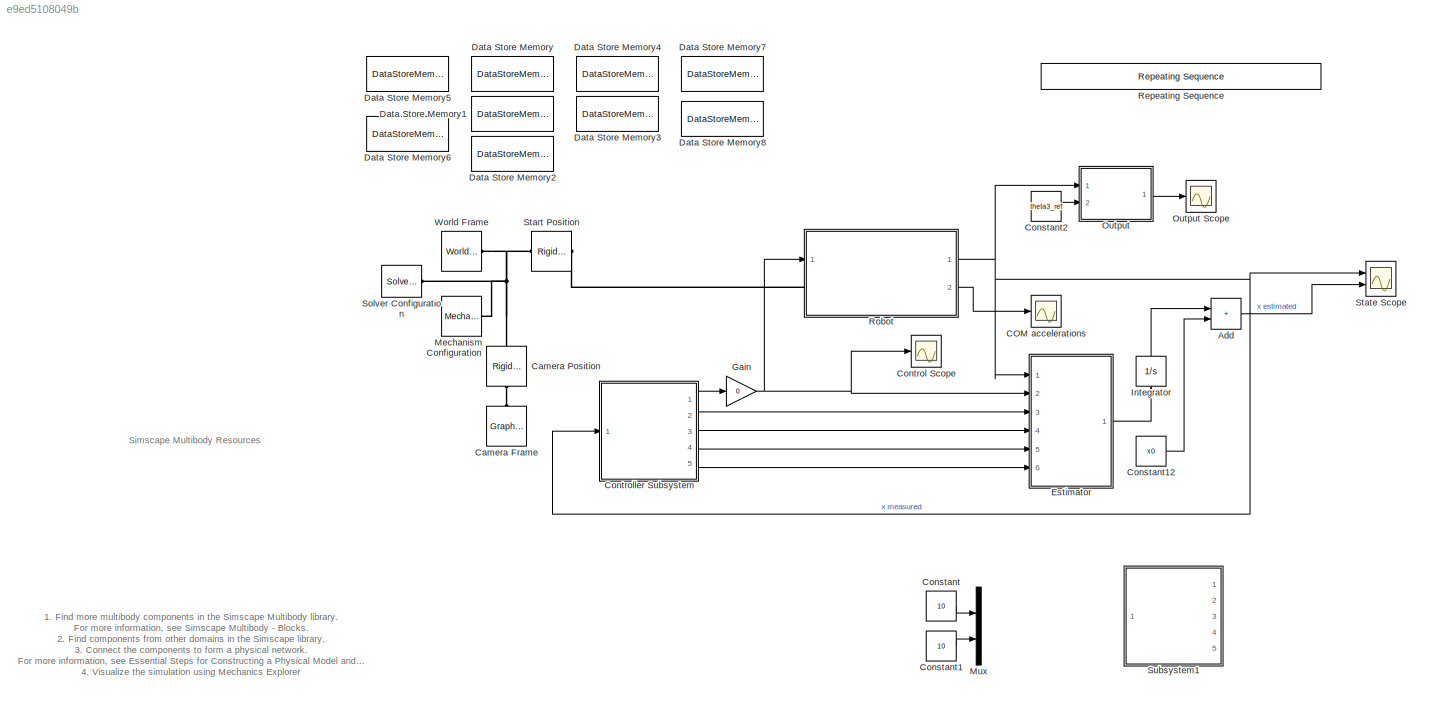
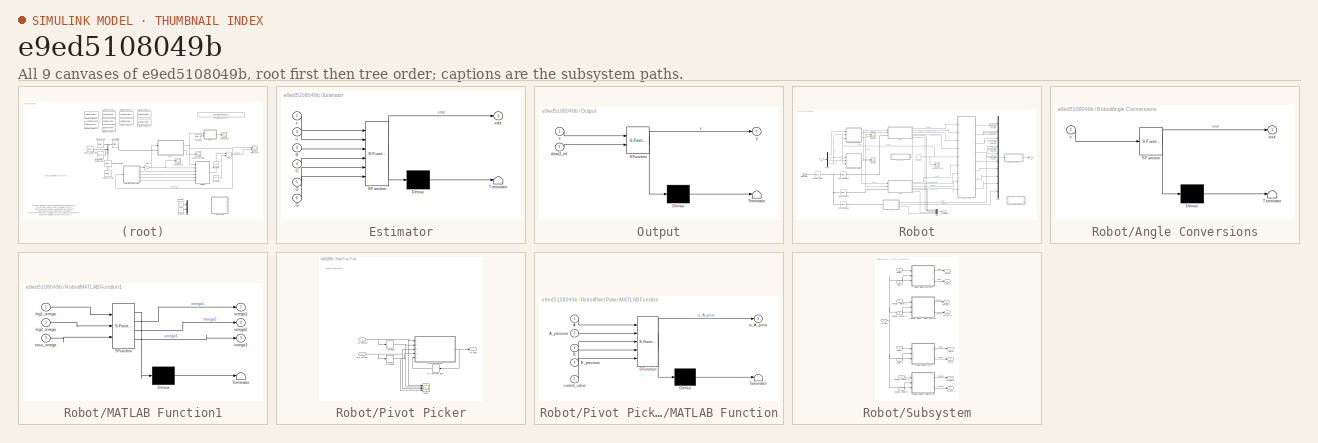
[diagram: thumbnail index - all 9 canvases of the model, root first then tree order]
MODEL slx_e9ed5108049b
KIND model
CONFIG AbsTol = auto
CONFIG EnableMultiTasking = on
CONFIG FixedStep = auto
CONFIG MaxStep = auto
CONFIG MinStep = auto
CONFIG RelTol = 1e-3
CONFIG SampleTimeConstraint = Unconstrained
CONFIG SolverName = ode23t
CONFIG StartTime = 0.0
CONFIG StopTime = 2
BLOCK [Sum] Add
  IconShape = rectangular
  Ports = [2, 1]
BLOCK [Scope] COM accelerations
  Floating = off
  NumInputPorts = 1
  Ports = [1]
  ScopeSpecificationString = Simulink.scopes.TimeScopeBlockCfg('CurrentConfiguration', extmgr.ConfigurationSet(extmgr.Configuration('Core','General UI',true),extmgr.Configuration('Core','Source UI',true),extmgr.Configuration('Sources','WiredSimulink',true,'DataLoggingVariableName','ScopeData3'),extmgr.Configuration('Visuals','Time Domain',true,'SerializedDisplays',{struct('MinYLimReal','-8574.83327','MaxYLimReal','77175.6204'...<+1649ch>
BLOCK [Reference] Camera Frame  REF=sm_lib/Body Elements/Graphic
  NameLocation = left
  Ports = [0, 0, 0, 0, 0, 0, 1]
  SourceBlock = sm_lib/Body Elements/Graphic
  SourceProductBaseCode = MS
  SourceType = Graphic
BLOCK [Reference] Camera Position  REF=sm_lib/Frames and
Transforms/Rigid
Transform
  NameLocation = left
  Ports = [0, 0, 0, 0, 0, 1, 1]
  SourceBlock = sm_lib/Frames and\nTransforms/Rigid\nTransform
  SourceProductBaseCode = MS
  SourceType = Rigid\nTransform
BLOCK [Constant] Constant
  Commented = on
  Value = 10
BLOCK [Constant] Constant1
  Commented = on
  Value = 10
BLOCK [Constant] Constant12
  Value = x0
BLOCK [Constant] Constant2
  Value = theta3_ref
BLOCK [Scope] Control Scope
  Floating = off
  NumInputPorts = 1
  Ports = [1]
  ScopeSpecificationString = Simulink.scopes.TimeScopeBlockCfg('CurrentConfiguration', extmgr.ConfigurationSet(extmgr.Configuration('Core','General UI',true),extmgr.Configuration('Core','Source UI',true),extmgr.Configuration('Sources','WiredSimulink',true,'DataLoggingVariableName','ScopeData5'),extmgr.Configuration('Visuals','Time Domain',true,'SerializedDisplays',{struct('MinYLimReal','-25.69355','MaxYLimReal','15.47306','YL...<+1630ch>
BLOCK [SubSystem] Controller Subsystem
  Ports = [1, 5]
  ReferencedSubsystem = Controller
  RequestExecContextInheritance = off
BLOCK [DataStoreMemory] Data Store Memory
  DataStoreName = torso_mass_sig
  Dimensions = 1
  InitialValue = torso_mass
  OutDataTypeStr = double
  ReadBeforeWriteMsg = warning
  ShowAdditionalParam = off
  SignalType = real
  WriteAfterReadMsg = warning
  WriteAfterWriteMsg = warning
BLOCK [DataStoreMemory] Data Store Memory1
  DataStoreName = leg_mass_sig
  Dimensions = 1
  InitialValue = leg_mass
  OutDataTypeStr = double
  ReadBeforeWriteMsg = warning
  ShowAdditionalParam = off
  SignalType = real
  WriteAfterReadMsg = warning
  WriteAfterWriteMsg = warning
BLOCK [DataStoreMemory] Data Store Memory2
  DataStoreName = hip_mass_sig
  Dimensions = 1
  InitialValue = hip_mass
  OutDataTypeStr = double
  ReadBeforeWriteMsg = warning
  ShowAdditionalParam = off
  SignalType = real
  WriteAfterReadMsg = warning
  WriteAfterWriteMsg = warning
BLOCK [DataStoreMemory] Data Store Memory3
  DataStoreName = leg_length_sig
  Dimensions = 1
  InitialValue = leg_length
  OutDataTypeStr = double
  ReadBeforeWriteMsg = warning
  ShowAdditionalParam = off
  SignalType = real
  WriteAfterReadMsg = warning
  WriteAfterWriteMsg = warning
BLOCK [DataStoreMemory] Data Store Memory4
  DataStoreName = torso_length_sig
  Dimensions = 1
  InitialValue = torso_length
  OutDataTypeStr = double
  ReadBeforeWriteMsg = warning
  ShowAdditionalParam = off
  SignalType = real
  WriteAfterReadMsg = warning
  WriteAfterWriteMsg = warning
BLOCK [DataStoreMemory] Data Store Memory5
  DataStoreName = g_sig
  Dimensions = 1
  InitialValue = g
  OutDataTypeStr = double
  ReadBeforeWriteMsg = warning
  ShowAdditionalParam = off
  SignalType = real
  WriteAfterReadMsg = warning
  WriteAfterWriteMsg = warning
BLOCK [DataStoreMemory] Data Store Memory6
  DataStoreName = B_sig
  InitialValue = B
  OutDataTypeStr = double
  ReadBeforeWriteMsg = warning
  ShowAdditionalParam = off
  SignalType = real
  WriteAfterReadMsg = warning
  WriteAfterWriteMsg = warning
BLOCK [DataStoreMemory] Data Store Memory7
  DataStoreName = alpha_sig
  Dimensions = 1
  InitialValue = alpha
  OutDataTypeStr = double
  ReadBeforeWriteMsg = warning
  ShowAdditionalParam = off
  SignalType = real
  WriteAfterReadMsg = warning
  WriteAfterWriteMsg = warning
BLOCK [DataStoreMemory] Data Store Memory8
  DataStoreName = theta3_ref_sig
  Dimensions = 1
  InitialValue = theta3_ref
  OutDataTypeStr = double
  ReadBeforeWriteMsg = warning
  ShowAdditionalParam = off
  SignalType = real
  WriteAfterReadMsg = warning
  WriteAfterWriteMsg = warning
BLOCK [SubSystem] Estimator
  ErrorFcn = Stateflow.Translate.translate
  PermitHierarchicalResolution = ExplicitOnly
  Ports = [6, 1]
  RequestExecContextInheritance = off
  SFBlockType = MATLAB Function
  TreatAsAtomicUnit = on
BLOCK [Demux] Estimator/ Demux 
  Outputs = 1
  Ports = [1, 1]
BLOCK [S-Function] Estimator/ SFunction 
  EnableBusSupport = on
  FunctionName = sf_sfun
  PortCounts = [6 2]
  Ports = [6, 2]
  SFcnIsStateOwnerBlock = off
  SFunctionDeploymentMode = off
  Tag = Stateflow S-Function 8
BLOCK [Terminator] Estimator/ Terminator 
BLOCK [Inport] Estimator/B
  Port = 3
BLOCK [Inport] Estimator/C
  Port = 4
BLOCK [Inport] Estimator/D
  Port = 5
BLOCK [Inport] Estimator/G
  Port = 6
BLOCK [Inport] Estimator/u
  Port = 2
BLOCK [Inport] Estimator/x
BLOCK [Outport] Estimator/xdot
BLOCK [Gain] Gain
  Gain = 0
BLOCK [Integrator] Integrator
  NameLocation = right
  Ports = [1, 1]
BLOCK [Reference] Mechanism Configuration  REF=sm_lib/Utilities/Mechanism
Configuration
  Ports = [0, 0, 0, 0, 0, 0, 1]
  SourceBlock = sm_lib/Utilities/Mechanism\nConfiguration
  SourceProductBaseCode = MS
  SourceType = Mechanism\nConfiguration
BLOCK [Mux] Mux
  Commented = on
  DisplayOption = bar
  Inputs = 2
  Ports = [2, 1]
BLOCK [SubSystem] Output
  ErrorFcn = Stateflow.Translate.translate
  PermitHierarchicalResolution = ExplicitOnly
  Ports = [2, 1]
  RequestExecContextInheritance = off
  SFBlockType = MATLAB Function
  TreatAsAtomicUnit = on
BLOCK [Scope] Output Scope
  Floating = off
  NumInputPorts = 1
  Ports = [1]
  ScopeSpecificationString = Simulink.scopes.TimeScopeBlockCfg('CurrentConfiguration', extmgr.ConfigurationSet(extmgr.Configuration('Core','General UI',true),extmgr.Configuration('Core','Source UI',true),extmgr.Configuration('Sources','WiredSimulink',true,'DataLoggingVariableName','ScopeData1'),extmgr.Configuration('Visuals','Time Domain',true,'SerializedDisplays',{struct('MinYLimReal','-2.44746','MaxYLimReal','5.40652','YLab...<+1587ch>
BLOCK [Demux] Output/ Demux 
  Outputs = 1
  Ports = [1, 1]
BLOCK [S-Function] Output/ SFunction 
  EnableBusSupport = on
  FunctionName = sf_sfun
  PortCounts = [2 2]
  Ports = [2, 2]
  SFcnIsStateOwnerBlock = off
  SFunctionDeploymentMode = off
  Tag = Stateflow S-Function 9
BLOCK [Terminator] Output/ Terminator 
BLOCK [Inport] Output/theta3_ref
  Port = 2
BLOCK [Inport] Output/x
BLOCK [Outport] Output/y
BLOCK [Reference] Repeating Sequence  REF=simulink/Sources/Repeating
Sequence
  Commented = on
  Ports = [0, 1]
  SourceBlock = simulink/Sources/Repeating\nSequence
  SourceProductBaseCode = SL
  SourceType = Repeating table
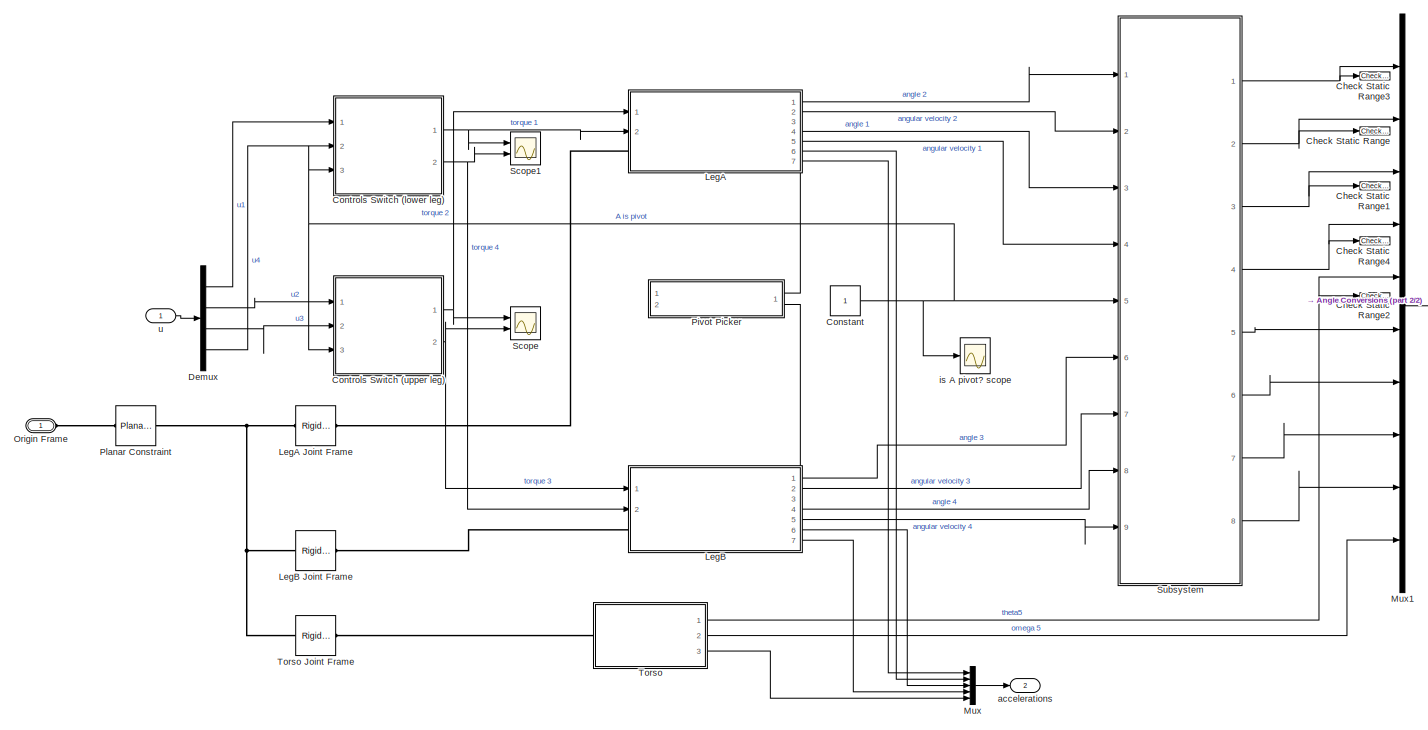
[diagram: Robot - part 1/2, most of the canvas]
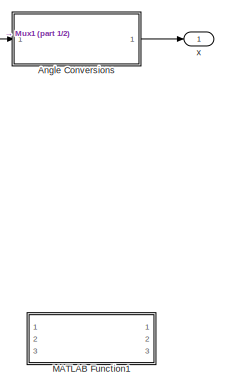
[diagram: Robot - part 2/2, middle right region]
BLOCK [SubSystem] Robot
  PortSchema = {"entries":[{"content":{"sides":[{"content":{"connectorIds":["LConn1","In1"]},"type":"ConnectorPlacement.EquallySpacedRectSide","uuid":"2f3210f0-abe8-4697-b3ad-d2ec49545383"},{"content":{"connectorIds":["Out1","Out2"],"side":"RIGHT"},"type":"ConnectorPlacement.EquallySpacedRectSide","uuid":"4399d13c-8cd1-4308-a65a-d503c0277a4d"},{"content":{"connectorIds":[],"side":"TOP"},"type":"ConnectorPlacemen...<+400ch>
  Ports = [1, 2, 0, 0, 0, 1]
  RequestExecContextInheritance = off
BLOCK [SubSystem] Robot/ Torso
  Ports = [0, 3, 0, 0, 0, 1]
  ReferencedSubsystem = Torso
  RequestExecContextInheritance = off
BLOCK [SubSystem] Robot/Angle Conversions
  ErrorFcn = Stateflow.Translate.translate
  PermitHierarchicalResolution = ExplicitOnly
  Ports = [1, 1]
  RequestExecContextInheritance = off
  SFBlockType = MATLAB Function
  TreatAsAtomicUnit = on
BLOCK [Demux] Robot/Angle Conversions/ Demux 
  Outputs = 1
  Ports = [1, 1]
BLOCK [S-Function] Robot/Angle Conversions/ SFunction 
  EnableBusSupport = on
  FunctionName = sf_sfun
  PortCounts = [1 2]
  Ports = [1, 2]
  SFcnIsStateOwnerBlock = off
  SFunctionDeploymentMode = off
  Tag = Stateflow S-Function 2
BLOCK [Terminator] Robot/Angle Conversions/ Terminator 
BLOCK [Inport] Robot/Angle Conversions/x
BLOCK [Outport] Robot/Angle Conversions/xout
BLOCK [Reference] Robot/Check Static Range  REF=simulink/Model
Verification/Check 
Static Range
  Description = -2*pi/3 < u < 2*pi/3
  Ports = [1]
  SourceBlock = simulink/Model\nVerification/Check \nStatic Range
  SourceProductBaseCode = SL
  SourceType = Checks_SRange
BLOCK [Reference] Robot/Check Static Range1  REF=simulink/Model
Verification/Check 
Static Range
  Description = -2*pi/3 < u < 2*pi/3
  Ports = [1]
  SourceBlock = simulink/Model\nVerification/Check \nStatic Range
  SourceProductBaseCode = SL
  SourceType = Checks_SRange
BLOCK [Reference] Robot/Check Static Range2  REF=simulink/Model
Verification/Check 
Static Range
  Description = -2*pi/3 < u < 2*pi/3
  Ports = [1]
  SourceBlock = simulink/Model\nVerification/Check \nStatic Range
  SourceProductBaseCode = SL
  SourceType = Checks_SRange
BLOCK [Reference] Robot/Check Static Range3  REF=simulink/Model
Verification/Check 
Static Range
  Description = -2*pi/3 < u < 2*pi/3
  Ports = [1]
  SourceBlock = simulink/Model\nVerification/Check \nStatic Range
  SourceProductBaseCode = SL
  SourceType = Checks_SRange
BLOCK [Reference] Robot/Check Static Range4  REF=simulink/Model
Verification/Check 
Static Range
  Description = -2*pi/3 < u < 2*pi/3
  Ports = [1]
  SourceBlock = simulink/Model\nVerification/Check \nStatic Range
  SourceProductBaseCode = SL
  SourceType = Checks_SRange
BLOCK [Constant] Robot/Constant
BLOCK [SubSystem] Robot/Controls Switch (lower leg)
  PortSchema = {"entries":[{"content":{"sides":[{"content":{"connectorIds":["In1","In3","In2"]},"type":"ConnectorPlacement.EquallySpacedRectSide","uuid":"7e33861c-5074-441d-b641-b4ece234d3e8"},{"content":{"connectorIds":["Out1","Out2"],"side":"RIGHT"},"type":"ConnectorPlacement.EquallySpacedRectSide","uuid":"609d8ac8-1838-48e6-9b6c-e0af73270124"},{"content":{"connectorIds":[],"side":"TOP"},"type":"ConnectorPlace...<+403ch>  <repeated x6 — deduplicated; at blocks: Controls Switch (lower leg), Controls Switch (upper leg), Angles Switch bottom, Angles Switch top, Angular Velocity Switch bottom, Angular Velocity Switch top>
  Ports = [3, 2]
  ReferencedSubsystem = SignalSwitch
  RequestExecContextInheritance = off
BLOCK [SubSystem] Robot/Controls Switch (upper leg)
  Ports = [3, 2]
  ReferencedSubsystem = SignalSwitch
  RequestExecContextInheritance = off
BLOCK [Demux] Robot/Demux
  Ports = [1, 4]
BLOCK [SubSystem] Robot/LegA
  PortSchema = {"entries":[{"content":{"sides":[{"content":{"connectorIds":["In1","In2","LConn1"]},"type":"ConnectorPlacement.EquallySpacedRectSide","uuid":"68930e0b-e4b0-4d49-946a-e41a255806cc"},{"content":{"connectorIds":["Out1","Out2","Out4","Out5","Out6","Out7"],"side":"RIGHT"},"type":"ConnectorPlacement.EquallySpacedRectSide","uuid":"a3896fcd-ecd1-47b2-8226-2ddb0e6701dc"},{"content":{"connectorIds":[],"side...<+584ch>
  Ports = [2, 7, 0, 0, 0, 1]
  ReferencedSubsystem = Limb
  RequestExecContextInheritance = off
BLOCK [Reference] Robot/LegA Joint Frame  REF=sm_lib/Frames and
Transforms/Rigid
Transform
  Ports = [0, 0, 0, 0, 0, 1, 1]
  SourceBlock = sm_lib/Frames and\nTransforms/Rigid\nTransform
  SourceProductBaseCode = MS
  SourceType = Rigid\nTransform
BLOCK [SubSystem] Robot/LegB
  PortSchema = {"entries":[{"content":{"sides":[{"content":{"connectorIds":["In1","In2","LConn1"]},"type":"ConnectorPlacement.EquallySpacedRectSide","uuid":"68930e0b-e4b0-4d49-946a-e41a255806cc"},{"content":{"connectorIds":["Out1","Out2","Out4","Out5","Out6","Out7"],"side":"RIGHT"},"type":"ConnectorPlacement.EquallySpacedRectSide","uuid":"a3896fcd-ecd1-47b2-8226-2ddb0e6701dc"},{"content":{"connectorIds":["Out3"]...<+440ch>
  Ports = [2, 7, 0, 0, 0, 1]
  ReferencedSubsystem = Limb
  RequestExecContextInheritance = off
BLOCK [Reference] Robot/LegB Joint Frame  REF=sm_lib/Frames and
Transforms/Rigid
Transform
  Ports = [0, 0, 0, 0, 0, 1, 1]
  SourceBlock = sm_lib/Frames and\nTransforms/Rigid\nTransform
  SourceProductBaseCode = MS
  SourceType = Rigid\nTransform
BLOCK [SubSystem] Robot/MATLAB Function1
  Commented = on
  ErrorFcn = Stateflow.Translate.translate
  PermitHierarchicalResolution = ExplicitOnly
  Ports = [3, 3]
  RequestExecContextInheritance = off
  SFBlockType = MATLAB Function
  TreatAsAtomicUnit = on
BLOCK [Demux] Robot/MATLAB Function1/ Demux 
  Outputs = 1
  Ports = [1, 1]
BLOCK [S-Function] Robot/MATLAB Function1/ SFunction 
  EnableBusSupport = on
  FunctionName = sf_sfun
  PortCounts = [3 4]
  Ports = [3, 4]
  SFcnIsStateOwnerBlock = off
  SFunctionDeploymentMode = off
  Tag = Stateflow S-Function 4
BLOCK [Terminator] Robot/MATLAB Function1/ Terminator 
BLOCK [Inport] Robot/MATLAB Function1/leg1_omega
BLOCK [Inport] Robot/MATLAB Function1/leg2_omega
  Port = 2
BLOCK [Outport] Robot/MATLAB Function1/omega1
BLOCK [Outport] Robot/MATLAB Function1/omega2
  Port = 2
BLOCK [Outport] Robot/MATLAB Function1/omega3
  Port = 3
BLOCK [Inport] Robot/MATLAB Function1/torso_omega
  Port = 3
BLOCK [Mux] Robot/Mux
  DisplayOption = bar
  Inputs = 5
  Ports = [5, 1]
BLOCK [Mux] Robot/Mux1
  DisplayOption = bar
  Inputs = 10
  Ports = [10, 1]
BLOCK [PMIOPort] Robot/Origin Frame
  Side = Left
BLOCK [SubSystem] Robot/Pivot Picker
  NameLocation = top
  PortSchema = {"entries":[{"content":{"sides":[{"content":{"connectorIds":[]},"type":"ConnectorPlacement.EquallySpacedRectSide","uuid":"be4fbf09-76ee-432b-8662-96fa6e1bc1d5"},{"content":{"connectorIds":["Out1"],"side":"RIGHT"},"type":"ConnectorPlacement.EquallySpacedRectSide","uuid":"596fe9f3-46af-4262-a320-141f0a882293"},{"content":{"connectorIds":["In1"],"side":"TOP"},"type":"ConnectorPlacement.EquallySpacedR...<+533ch>
  Ports = [2, 1]
  RequestExecContextInheritance = off
BLOCK [Inport] Robot/Pivot Picker/A is contact
BLOCK [Outport] Robot/Pivot Picker/A is pivot
  PortDimensions = 1
BLOCK [Memory] Robot/Pivot Picker/A previous
BLOCK [Inport] Robot/Pivot Picker/B is contact
  Port = 2
BLOCK [Memory] Robot/Pivot Picker/B previous
BLOCK [SubSystem] Robot/Pivot Picker/MATLAB Function
  ErrorFcn = Stateflow.Translate.translate
  PermitHierarchicalResolution = ExplicitOnly
  Ports = [5, 1]
  RequestExecContextInheritance = off
  SFBlockType = MATLAB Function
  TreatAsAtomicUnit = on
BLOCK [Demux] Robot/Pivot Picker/MATLAB Function/ Demux 
  Outputs = 1
  Ports = [1, 1]
BLOCK [S-Function] Robot/Pivot Picker/MATLAB Function/ SFunction 
  EnableBusSupport = on
  FunctionName = sf_sfun
  PortCounts = [5 2]
  Ports = [5, 2]
  SFcnIsStateOwnerBlock = off
  SFunctionDeploymentMode = off
  Tag = Stateflow S-Function 7
BLOCK [Terminator] Robot/Pivot Picker/MATLAB Function/ Terminator 
BLOCK [Inport] Robot/Pivot Picker/MATLAB Function/A
BLOCK [Inport] Robot/Pivot Picker/MATLAB Function/A_previous
  Port = 2
BLOCK [Inport] Robot/Pivot Picker/MATLAB Function/B
  Port = 3
BLOCK [Inport] Robot/Pivot Picker/MATLAB Function/B_previous
  Port = 4
BLOCK [Inport] Robot/Pivot Picker/MATLAB Function/current_value
  Port = 5
BLOCK [Outport] Robot/Pivot Picker/MATLAB Function/is_A_pivot
BLOCK [Scope] Robot/Pivot Picker/Scope
  Floating = off
  NumInputPorts = 4
  Ports = [4]
  ScopeSpecificationString = Simulink.scopes.TimeScopeBlockCfg('CurrentConfiguration', extmgr.ConfigurationSet(extmgr.Configuration('Core','General UI',true),extmgr.Configuration('Core','Source UI',true),extmgr.Configuration('Sources','WiredSimulink',true,'DataLoggingVariableName','ScopeData3'),extmgr.Configuration('Visuals','Time Domain',true,'SerializedDisplays',{struct('MinYLimReal','-0.125','MaxYLimReal','1.125','YLabelRe...<+1541ch>
BLOCK [Memory] Robot/Pivot Picker/is A current pivot
BLOCK [Reference] Robot/Planar Constraint  REF=sm_lib/Joints/Planar Joint
  Ports = [0, 0, 0, 0, 0, 1, 1]
  SourceBlock = sm_lib/Joints/Planar Joint
  SourceProductBaseCode = MS
  SourceType = Planar Joint
BLOCK [Scope] Robot/Scope
  Floating = off
  NumInputPorts = 2
  Ports = [2]
  ScopeSpecificationString = Simulink.scopes.TimeScopeBlockCfg('CurrentConfiguration', extmgr.ConfigurationSet(extmgr.Configuration('Core','General UI',true),extmgr.Configuration('Core','Source UI',true),extmgr.Configuration('Sources','WiredSimulink',true,'DataLoggingVariableName','ScopeData4'),extmgr.Configuration('Visuals','Time Domain',true,'SerializedDisplays',{struct('MinYLimReal','-1.00000','MaxYLimReal','1.00000','YLab...<+1386ch>
BLOCK [Scope] Robot/Scope1
  Floating = off
  NumInputPorts = 2
  Ports = [2]
  ScopeSpecificationString = Simulink.scopes.TimeScopeBlockCfg('CurrentConfiguration', extmgr.ConfigurationSet(extmgr.Configuration('Core','General UI',true),extmgr.Configuration('Core','Source UI',true),extmgr.Configuration('Sources','WiredSimulink',true,'DataLoggingVariableName','ScopeData3'),extmgr.Configuration('Visuals','Time Domain',true,'SerializedDisplays',{struct('MinYLimReal','-1.00000','MaxYLimReal','1.00000','YLab...<+1386ch>
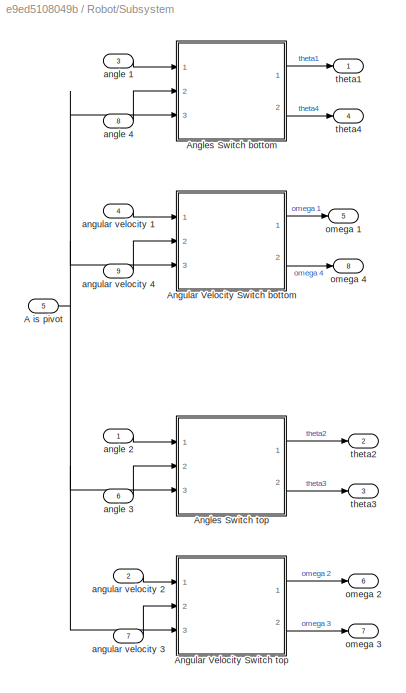
BLOCK [SubSystem] Robot/Subsystem
  Ports = [9, 8]
  RequestExecContextInheritance = off
BLOCK [Inport] Robot/Subsystem/A is pivot
  Port = 5
BLOCK [SubSystem] Robot/Subsystem/Angles Switch bottom
  Ports = [3, 2]
  ReferencedSubsystem = SignalSwitch
  RequestExecContextInheritance = off
BLOCK [SubSystem] Robot/Subsystem/Angles Switch top
  Ports = [3, 2]
  ReferencedSubsystem = SignalSwitch
  RequestExecContextInheritance = off
BLOCK [SubSystem] Robot/Subsystem/Angular Velocity Switch bottom
  Ports = [3, 2]
  ReferencedSubsystem = SignalSwitch
  RequestExecContextInheritance = off
BLOCK [SubSystem] Robot/Subsystem/Angular Velocity Switch top
  Ports = [3, 2]
  ReferencedSubsystem = SignalSwitch
  RequestExecContextInheritance = off
BLOCK [Inport] Robot/Subsystem/angle 1
  Port = 3
BLOCK [Inport] Robot/Subsystem/angle 2
BLOCK [Inport] Robot/Subsystem/angle 3
  Port = 6
BLOCK [Inport] Robot/Subsystem/angle 4
  Port = 8
BLOCK [Inport] Robot/Subsystem/angular velocity 1
  Port = 4
BLOCK [Inport] Robot/Subsystem/angular velocity 2
  Port = 2
BLOCK [Inport] Robot/Subsystem/angular velocity 3
  Port = 7
BLOCK [Inport] Robot/Subsystem/angular velocity 4
  Port = 9
BLOCK [Outport] Robot/Subsystem/omega 1
  Port = 5
BLOCK [Outport] Robot/Subsystem/omega 2
  Port = 6
BLOCK [Outport] Robot/Subsystem/omega 3
  Port = 7
BLOCK [Outport] Robot/Subsystem/omega 4
  Port = 8
BLOCK [Outport] Robot/Subsystem/theta1
BLOCK [Outport] Robot/Subsystem/theta2
  Port = 2
BLOCK [Outport] Robot/Subsystem/theta3
  Port = 3
BLOCK [Outport] Robot/Subsystem/theta4
  Port = 4
BLOCK [Reference] Robot/Torso Joint Frame  REF=sm_lib/Frames and
Transforms/Rigid
Transform
  Ports = [0, 0, 0, 0, 0, 1, 1]
  SourceBlock = sm_lib/Frames and\nTransforms/Rigid\nTransform
  SourceProductBaseCode = MS
  SourceType = Rigid\nTransform
BLOCK [Outport] Robot/accelerations
  Port = 2
  PortDimensions = 5
BLOCK [Scope] Robot/is A pivot? scope
  Floating = off
  NumInputPorts = 1
  Ports = [1]
  ScopeSpecificationString = Simulink.scopes.TimeScopeBlockCfg('CurrentConfiguration', extmgr.ConfigurationSet(extmgr.Configuration('Core','General UI',true),extmgr.Configuration('Core','Source UI',true),extmgr.Configuration('Sources','WiredSimulink',true,'DataLoggingVariableName','ScopeData2'),extmgr.Configuration('Visuals','Time Domain',true,'SerializedDisplays',{struct('MinYLimReal','0.9','MaxYLimReal','1.1','YLabelReal','...<+1461ch>
BLOCK [Inport] Robot/u
  PortDimensions = 4
BLOCK [Outport] Robot/x
  PortDimensions = 10
BLOCK [Reference] Solver Configuration  REF=nesl_utility/Solver
Configuration
  Ports = [0, 0, 0, 0, 0, 0, 1]
  SourceBlock = nesl_utility/Solver\nConfiguration
  SourceProductBaseCode = SS
  SourceType = Solver\nConfiguration
BLOCK [Reference] Start Position  REF=sm_lib/Frames and
Transforms/Rigid
Transform
  Ports = [0, 0, 0, 0, 0, 1, 1]
  SourceBlock = sm_lib/Frames and\nTransforms/Rigid\nTransform
  SourceProductBaseCode = MS
  SourceType = Rigid\nTransform
BLOCK [Scope] State Scope
  Floating = off
  NumInputPorts = 2
  Ports = [2]
  ScopeSpecificationString = Simulink.scopes.TimeScopeBlockCfg('CurrentConfiguration', extmgr.ConfigurationSet(extmgr.Configuration('Core','General UI',true),extmgr.Configuration('Core','Source UI',true),extmgr.Configuration('Sources','WiredSimulink',true,'DataLoggingVariableName','ScopeData1'),extmgr.Configuration('Visuals','Time Domain',true,'SerializedDisplays',{struct('MinYLimReal','-51.86479','MaxYLimReal','92.31968','YL...<+2244ch>
BLOCK [SubSystem] Subsystem1
  Commented = on
  Ports = [1, 5]
  ReferencedSubsystem = Controller
  RequestExecContextInheritance = off
BLOCK [Reference] World Frame  REF=sm_lib/Frames and
Transforms/World Frame
  Ports = [0, 0, 0, 0, 0, 0, 1]
  SourceBlock = sm_lib/Frames and\nTransforms/World Frame
  SourceProductBaseCode = MS
  SourceType = World Frame
ANNOTATION (root): 1. Find more multibody components in the Simscape Multibody library . For more information, see Simscape Multibody - Blocks . 2. Find components from other domains in the Simscape library . 3. Connect the components to form a physical network. For more information, see Essential Steps for Constructing a Physical Model and Creating a Multibody Model . 4. Visualize the simulation using Mechanics Exp...<+52ch>
ANNOTATION (root): Simscape Multibody Resources
ANNOTATION Robot/Pivot Picker: Variant Subsystem
LINE Add:1 -> State Scope:2
LINE Constant12:1 -> Add:2
LINE Constant1:1 -> Mux:2
LINE Constant2:1 -> Output:2
LINE Constant:1 -> Mux:1
LINE Controller Subsystem:1 -> Gain:1
LINE Controller Subsystem:2 -> Estimator:3
LINE Controller Subsystem:3 -> Estimator:4
LINE Controller Subsystem:4 -> Estimator:5
LINE Controller Subsystem:5 -> Estimator:6
LINE Estimator:1 -> Integrator:1
NET Gain:1 -> Control Scope:1, Estimator:2, Robot:1
LINE Integrator:1 -> Add:1
LINE Output:1 -> Output Scope:1
NET Robot/ Torso:1 -> Robot/Check Static Range2:1, Robot/Mux1:5
LINE Robot/ Torso:2 -> Robot/Mux1:10
LINE Robot/ Torso:3 -> Robot/Mux:5
LINE Robot/Angle Conversions:1 -> Robot/x:1
NET Robot/Constant:1 -> Robot/Controls Switch (lower leg):3, Robot/Controls Switch (upper leg):3, Robot/Subsystem:5, Robot/is A pivot? scope:1
NET Robot/Controls Switch (lower leg):1 -> Robot/LegA:2, Robot/Scope1:1
NET Robot/Controls Switch (lower leg):2 -> Robot/LegB:2, Robot/Scope1:2
NET Robot/Controls Switch (upper leg):1 -> Robot/LegA:1, Robot/Scope:1
NET Robot/Controls Switch (upper leg):2 -> Robot/LegB:1, Robot/Scope:2
LINE Robot/Demux:1 -> Robot/Controls Switch (lower leg):1
LINE Robot/Demux:2 -> Robot/Controls Switch (upper leg):1
LINE Robot/Demux:3 -> Robot/Controls Switch (upper leg):2
LINE Robot/Demux:4 -> Robot/Controls Switch (lower leg):2
LINE Robot/LegA:1 -> Robot/Subsystem:1
LINE Robot/LegA:2 -> Robot/Subsystem:2
LINE Robot/LegA:3 -> Robot/Pivot Picker:1
LINE Robot/LegA:4 -> Robot/Subsystem:3
LINE Robot/LegA:5 -> Robot/Subsystem:4
LINE Robot/LegA:6 -> Robot/Mux:2
LINE Robot/LegA:7 -> Robot/Mux:1
LINE Robot/LegB:1 -> Robot/Subsystem:6
LINE Robot/LegB:2 -> Robot/Subsystem:7
LINE Robot/LegB:3 -> Robot/Pivot Picker:2
LINE Robot/LegB:4 -> Robot/Subsystem:8
LINE Robot/LegB:5 -> Robot/Subsystem:9
LINE Robot/LegB:6 -> Robot/Mux:3
LINE Robot/LegB:7 -> Robot/Mux:4
LINE Robot/Mux1:1 -> Robot/Angle Conversions:1
LINE Robot/Mux:1 -> Robot/accelerations:1
NET Robot/Pivot Picker/A is contact:1 -> Robot/Pivot Picker/A previous:1, Robot/Pivot Picker/MATLAB Function:1, Robot/Pivot Picker/Scope:1
NET Robot/Pivot Picker/A previous:1 -> Robot/Pivot Picker/MATLAB Function:2, Robot/Pivot Picker/Scope:2
NET Robot/Pivot Picker/B is contact:1 -> Robot/Pivot Picker/B previous:1, Robot/Pivot Picker/MATLAB Function:3, Robot/Pivot Picker/Scope:3
NET Robot/Pivot Picker/B previous:1 -> Robot/Pivot Picker/MATLAB Function:4, Robot/Pivot Picker/Scope:4
NET Robot/Pivot Picker/MATLAB Function:1 -> Robot/Pivot Picker/A is pivot:1, Robot/Pivot Picker/is A current pivot:1
LINE Robot/Pivot Picker/is A current pivot:1 -> Robot/Pivot Picker/MATLAB Function:5
NET Robot/Subsystem/A is pivot:1 -> Robot/Subsystem/Angles Switch bottom:3, Robot/Subsystem/Angles Switch top:3, Robot/Subsystem/Angular Velocity Switch bottom:3, Robot/Subsystem/Angular Velocity Switch top:3
LINE Robot/Subsystem/Angles Switch bottom:1 -> Robot/Subsystem/theta1:1
LINE Robot/Subsystem/Angles Switch bottom:2 -> Robot/Subsystem/theta4:1
LINE Robot/Subsystem/Angles Switch top:1 -> Robot/Subsystem/theta2:1
LINE Robot/Subsystem/Angles Switch top:2 -> Robot/Subsystem/theta3:1
LINE Robot/Subsystem/Angular Velocity Switch bottom:1 -> Robot/Subsystem/omega 1:1
LINE Robot/Subsystem/Angular Velocity Switch bottom:2 -> Robot/Subsystem/omega 4:1
LINE Robot/Subsystem/Angular Velocity Switch top:1 -> Robot/Subsystem/omega 2:1
LINE Robot/Subsystem/Angular Velocity Switch top:2 -> Robot/Subsystem/omega 3:1
LINE Robot/Subsystem/angle 1:1 -> Robot/Subsystem/Angles Switch bottom:1
LINE Robot/Subsystem/angle 2:1 -> Robot/Subsystem/Angles Switch top:1
LINE Robot/Subsystem/angle 3:1 -> Robot/Subsystem/Angles Switch top:2
LINE Robot/Subsystem/angle 4:1 -> Robot/Subsystem/Angles Switch bottom:2
LINE Robot/Subsystem/angular velocity 1:1 -> Robot/Subsystem/Angular Velocity Switch bottom:1
LINE Robot/Subsystem/angular velocity 2:1 -> Robot/Subsystem/Angular Velocity Switch top:1
LINE Robot/Subsystem/angular velocity 3:1 -> Robot/Subsystem/Angular Velocity Switch top:2
LINE Robot/Subsystem/angular velocity 4:1 -> Robot/Subsystem/Angular Velocity Switch bottom:2
NET Robot/Subsystem:1 -> Robot/Check Static Range3:1, Robot/Mux1:1
NET Robot/Subsystem:2 -> Robot/Check Static Range:1, Robot/Mux1:2
NET Robot/Subsystem:3 -> Robot/Check Static Range1:1, Robot/Mux1:3
NET Robot/Subsystem:4 -> Robot/Check Static Range4:1, Robot/Mux1:4
LINE Robot/Subsystem:5 -> Robot/Mux1:6
LINE Robot/Subsystem:6 -> Robot/Mux1:7
LINE Robot/Subsystem:7 -> Robot/Mux1:8
LINE Robot/Subsystem:8 -> Robot/Mux1:9
LINE Robot/u:1 -> Robot/Demux:1
NET Robot:1 -> Controller Subsystem:1, Estimator:1, Output:1, State Scope:1
LINE Robot:2 -> COM accelerations:1
PLINE Camera Frame:RConn1 -- Camera Position:RConn1
PNET net1: Camera Position:LConn1 -- Mechanism Configuration:RConn1 -- Solver Configuration:RConn1 -- Start Position:LConn1 -- World Frame:RConn1
PLINE Robot/ Torso:LConn1 -- Robot/Torso Joint Frame:RConn1
PNET net2: Robot/LegA Joint Frame:LConn1 -- Robot/LegB Joint Frame:LConn1 -- Robot/Planar Constraint:RConn1 -- Robot/Torso Joint Frame:LConn1
PLINE Robot/LegA Joint Frame:RConn1 -- Robot/LegA:LConn1
PLINE Robot/LegB Joint Frame:RConn1 -- Robot/LegB:LConn1
PLINE Robot/Origin Frame:RConn1 -- Robot/Planar Constraint:LConn1
PLINE Robot:LConn1 -- Start Position:RConn1
note: NET lines group one-source signal fan-out (src -> all destinations, sorted); 1:1 wires keep LINE; PNET lines group multi-terminal physical nets as a canonical sorted terminal list (undirected conserving connections); 2-terminal nets keep the pairwise PLINE form
CHART Robot/Angle Conversions states=1 transitions=1
  STATE_LABEL 'eML_blk_kernel()'
  STATE_LABEL 'SCRIPT:\nfunction xout = convert_angles(x)\n    % convert from the angles calcualted relative to the vertical to the\n    % angles calculated relative to the prior link direction.\n\n    theta_tilde = x(1:5);\n    omega_tilde = x(6:10);\n    \n    theta = NaN*zeros([5,1]);\n    omega = NaN*zeros([5,1]);\n    \n    theta(1) = pi/2 - theta_tilde(1);\n    theta(2) = theta_tilde(1) - theta_tilde(2);\n    theta(3) ...<+409ch>'
CHART Robot/MATLAB Function1 states=1 transitions=1
  STATE_LABEL 'eML_blk_kernel()'
  STATE_LABEL 'SCRIPT:\nfunction [omega1, omega2, omega3] = fcn(leg1_omega, leg2_omega, torso_omega)\n\n    omega1 = leg1_omega;\n    omega2 = leg2_omega;\n    omega3 = torso_omega;\n    '
CHART Robot/Pivot Picker/MATLAB Function states=1 transitions=1
  STATE_LABEL 'eML_blk_kernel()'
  STATE_LABEL 'SCRIPT:\nfunction is_A_pivot = fcn(A, A_previous, B, B_previous, current_value)\n\nif ~A && ~B\n    is_A_pivot = current_value; \n    return\nelseif A && ~B\n    is_A_pivot = 1;\n    return\nelseif ~A && B \n    is_A_pivot = 0;\n    return\nend\n\n% At this point we must have (A and B). So we switch to which ever is the\n% new value\nif ~A_previous\n    is_A_pivot = 0.0;\n    return \nelseif ~B_previous\n    is_A_piv...<+75ch>'
CHART Estimator states=1 transitions=1
  STATE_LABEL 'eML_blk_kernel()'
  STATE_LABEL 'SCRIPT:\nfunction xdot = f_cl(x, u, B, C, D, G)\n    omega = x(6:10);\n    xdot = [omega; \n            D \\ (-C*omega - G + B*u)]; \nend\n'
CHART Output states=1 transitions=1
  STATE_LABEL 'eML_blk_kernel()'
  STATE_LABEL 'SCRIPT:\nfunction y = h(x, theta3_ref)\n\ntheta1 = x(1);\ntheta2 = x(2);\ntheta3 = x(3);\n\ny = [theta3 - theta3_ref; theta1 + theta2];\n'
CHART  states=0 transitions=0
CHART  states=0 transitions=0
CHART  states=0 transitions=0
CHART  states=0 transitions=0
CHART  states=0 transitions=0
